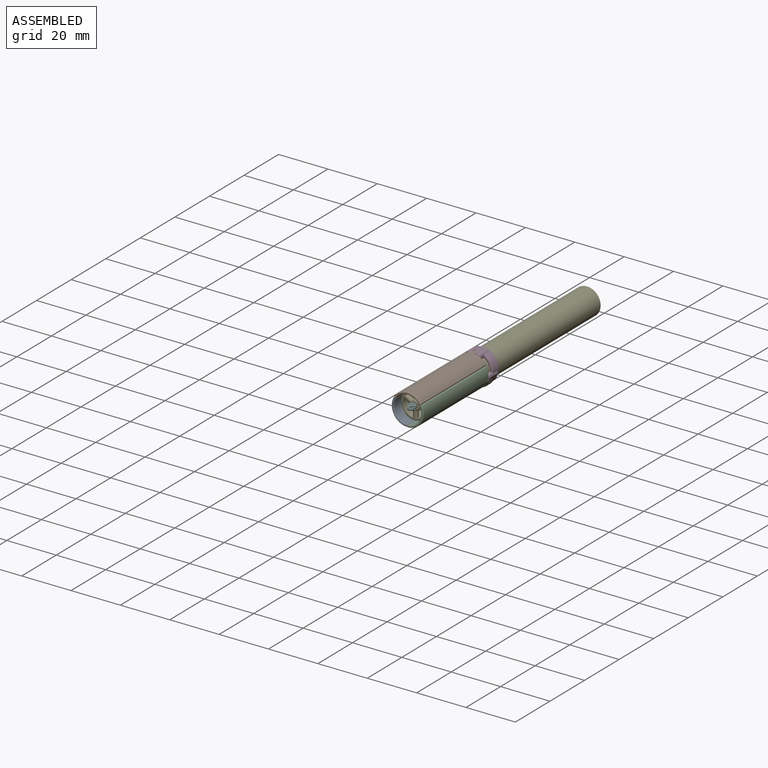
[diagram: assembled view]
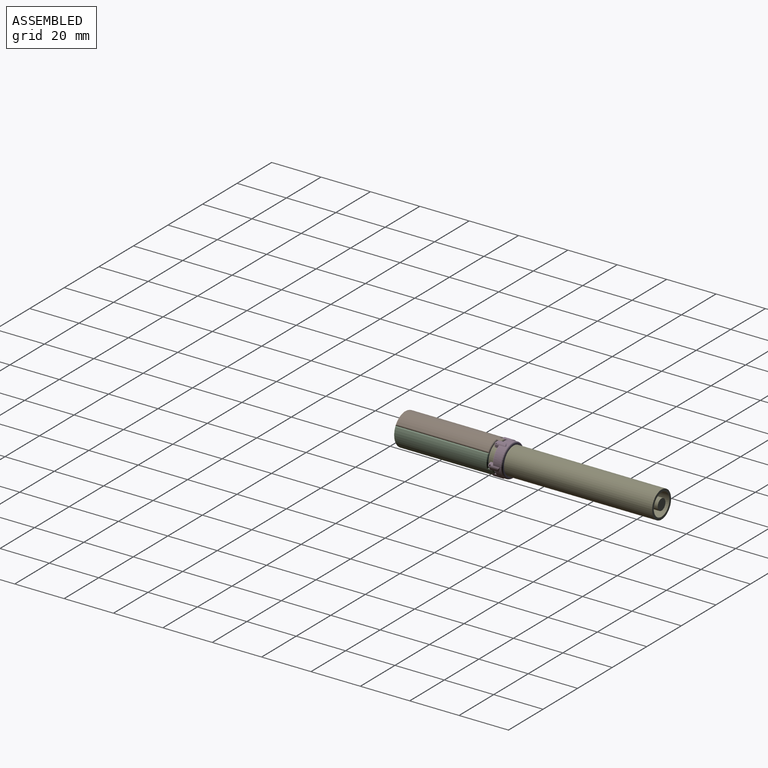
[diagram: assembled view, second angle]
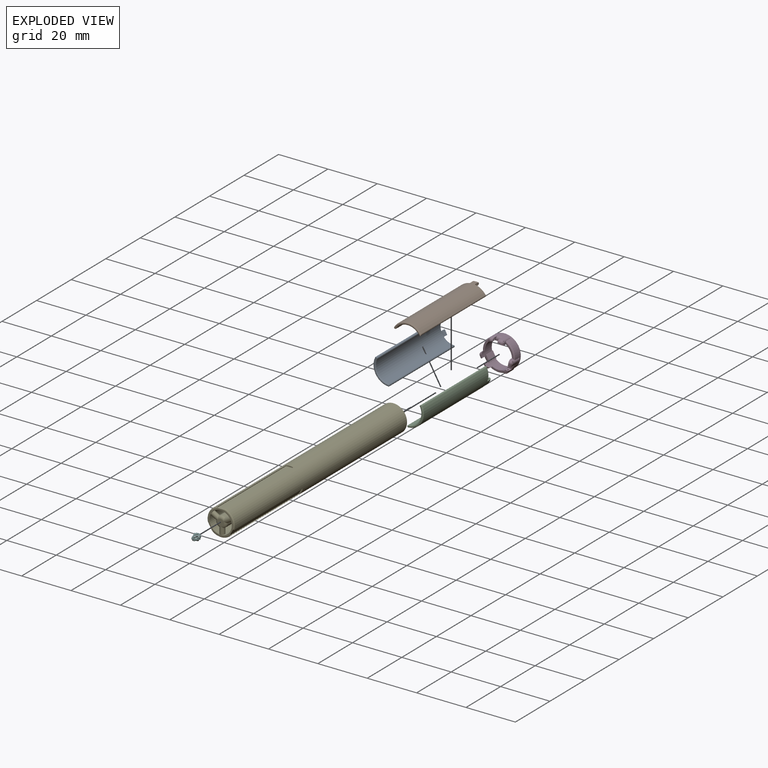
[diagram: exploded view]
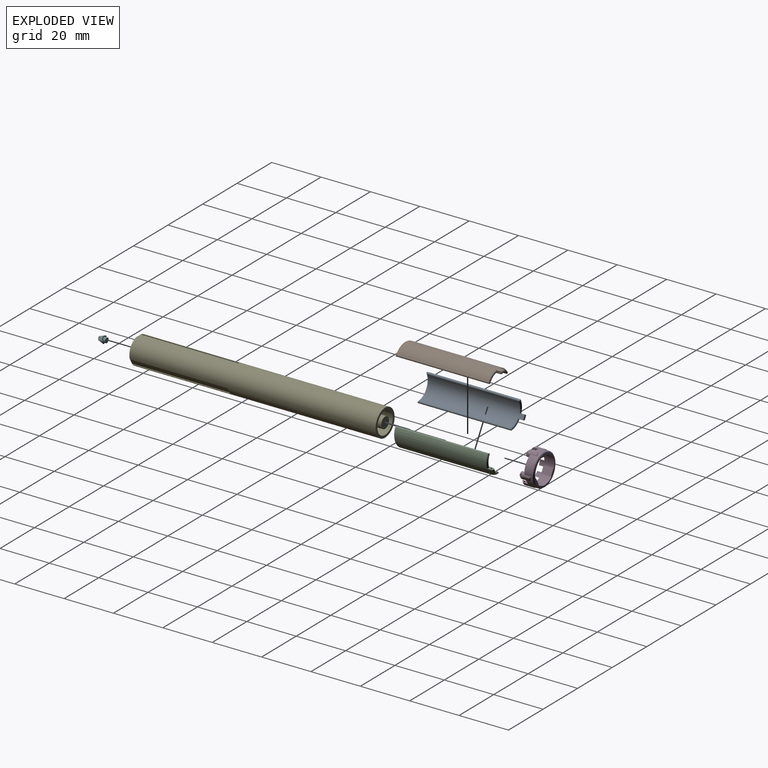
[diagram: exploded view, second angle]
ASSEMBLY  parts=6 mates=5
PART A: 15 faces, bbox 12.2x40x4.3 mm
  f0: cylinder r=6.5mm len=39mm, axis (0,1,0), area 467.6mm2, adj f3,f4,f8,f10,f11,f12,f13,f14
  f1: cylinder r=5.5mm len=37.5mm, axis (0,1,0), area 393.3mm2, adj f2,f3,f4,f10,f11,f12,f13,f14
  f2: plane 2x0.09mm, normal (0,-1,0), area 0.1mm2, adj f1,f5
  f3: plane 2.5x1.01mm, normal (-1,0,0), area 1.8mm2, adj f0,f1,f5,f6,f7,f8,f9,f14
  f4: plane 2.5x1.01mm, normal (1,0,0), area 1.8mm2, adj f0,f1,f5,f6,f7,f8,f9,f10
  f5: plane 2x1.5mm, normal (0,0,-1), area 3mm2, adj f2,f3,f4,f9
  f6: plane 2x0.09mm, normal (0,1,0), area 0.1mm2, adj f3,f4,f8,f9
  f7: cylinder r=0.25mm len=2mm, axis (1,0,0), area 3.1mm2, adj f3,f4
  f8: torus R=6mm, axis (0,1,0), area 1.6mm2, adj f0,f3,f4,f6
  f9: cylinder r=0.5mm len=2mm, axis (1,0,0), area 1.6mm2, adj f3,f4,f5,f6
  f10: torus R=6mm, axis (0,-1,0), area 8mm2, adj f0,f1,f4,f11
  f11: cylinder r=0.5mm len=38mm, axis (0,1,0), area 59.1mm2, adj f0,f1,f10,f12
  f12: torus R=6mm, axis (0,-1,0), area 19.2mm2, adj f0,f1,f11,f13
  f13: cylinder r=0.5mm len=38mm, axis (0,1,0), area 59.1mm2, adj f0,f1,f12,f14
  f14: torus R=6mm, axis (0,-1,0), area 8mm2, adj f0,f1,f3,f13
PART B: same geometry as A
PART C: same geometry as A
PART D: 87 faces, bbox 14.1x6x14.1 mm
  f0: cylinder r=5.5mm len=7.25mm, axis (0,1,0), area 42.8mm2, adj f5,f7,f8,f10,f15,f16,f18,f27
  f1: cylinder r=5.5mm len=8.37mm, axis (0,1,0), area 42.8mm2, adj f4,f7,f9,f10,f19,f20,f22,f31
  f2: cylinder r=5.5mm len=7.25mm, axis (0,1,0), area 42.8mm2, adj f6,f8,f9,f10,f12,f13,f14,f23
  f3: cylinder r=6.5mm len=13mm, axis (0,1,0), area 93.9mm2, adj f11,f17,f21,f24,f29,f32,f41,f42
  f4: plane 6x1.1mm, normal (0,-1,0), area 2.9mm2, adj f1,f19,f31,f66
  f5: plane 5.2x3mm, normal (0,-1,0), area 2.9mm2, adj f0,f16,f27,f65
  f6: plane 5.2x3mm, normal (0,-1,0), area 2.9mm2, adj f2,f12,f23,f67
  f7: plane 2.68x1.73mm, normal (0,-1,0), area 1.3mm2, adj f0,f1,f59,f60,f61,f62
  f8: plane 3x0.5mm, normal (0,-1,0), area 1.3mm2, adj f0,f2,f53,f54,f55,f64
  f9: plane 2.68x1.73mm, normal (0,-1,0), area 1.3mm2, adj f1,f2,f56,f57,f58,f63
  f10: plane 12x12mm, normal (0,1,0), area 21.9mm2, adj f0,f1,f2,f53,f54,f55,f56,f57
  f11: plane 3x1mm, normal (0,0,1), area 3mm2, adj f3,f13,f49,f50,f72
  f12: plane 1.04x0.82mm, normal (-1,0,0), area 0.8mm2, adj f2,f6,f49,f67,f74
  f13: plane 3x1.01mm, normal (1,0,0), area 1.8mm2, adj f2,f11,f14,f36,f64,f72
  f14: plane 1x0.3mm, normal (0,-1,0), area 0.1mm2, adj f2,f13,f72,f74
  f15: plane 3x1.01mm, normal (-1,0,0), area 1.8mm2, adj f0,f17,f18,f35,f64,f69
  f16: plane 1.04x0.82mm, normal (1,0,0), area 0.8mm2, adj f0,f5,f51,f65,f71
  f17: plane 3x1mm, normal (0,0,1), area 3mm2, adj f3,f15,f51,f52,f69
  f18: plane 1x0.3mm, normal (0,-1,0), area 0.1mm2, adj f0,f15,f69,f71
  f19: plane 1.04x0.71mm, normal (0.5,0,-0.87), area 0.8mm2, adj f1,f4,f41,f66,f81
  f20: plane 3x0.88mm, normal (-0.5,0,0.87), area 1.8mm2, adj f1,f21,f22,f38,f63,f83
  f21: plane 3x0.87mm, normal (-0.87,0,-0.5), area 3mm2, adj f3,f20,f41,f42,f83
  f22: plane 0.87x0.76mm, normal (0,-1,0), area 0.1mm2, adj f1,f20,f81,f83
  f23: plane 1.04x0.71mm, normal (-0.5,0,0.87), area 0.8mm2, adj f2,f6,f43,f67,f86
  f24: plane 3x0.87mm, normal (-0.87,0,-0.5), area 3mm2, adj f3,f25,f43,f44,f84
  f25: plane 3x0.88mm, normal (0.5,0,-0.87), area 1.8mm2, adj f2,f24,f26,f37,f63,f84
  f26: plane 1.02x0.51mm, normal (0,-1,0), area 0.1mm2, adj f2,f25,f84,f86
  f27: plane 1.04x0.71mm, normal (0.5,0,0.87), area 0.8mm2, adj f0,f5,f47,f65,f75
  f28: plane 3x0.88mm, normal (-0.5,0,-0.87), area 1.8mm2, adj f0,f29,f30,f40,f62,f77
  f29: plane 3x0.87mm, normal (0.87,0,-0.5), area 3mm2, adj f3,f28,f47,f48,f77
  f30: plane 1.02x0.51mm, normal (0,-1,0), area 0.1mm2, adj f0,f28,f75,f77
  f31: plane 1.04x0.71mm, normal (-0.5,0,-0.87), area 0.8mm2, adj f1,f4,f45,f66,f80
  f32: plane 3x0.87mm, normal (0.87,0,-0.5), area 3mm2, adj f3,f33,f45,f46,f78
  f33: plane 3x0.88mm, normal (0.5,0,0.87), area 1.8mm2, adj f1,f32,f34,f39,f62,f78
  f34: plane 0.87x0.76mm, normal (0,-1,0), area 0.1mm2, adj f1,f33,f78,f80
  f35: cylinder r=0.25mm len=1.97mm, axis (1,0,0), area 2.9mm2, adj f15,f51,f70
  f36: cylinder r=0.25mm len=1.97mm, axis (1,0,0), area 2.9mm2, adj f13,f49,f73
  f37: cylinder r=0.25mm len=1.95mm, axis (-0.5,0,0.87), area 2.9mm2, adj f25,f43,f85
  f38: cylinder r=0.25mm len=1.95mm, axis (-0.5,0,0.87), area 2.9mm2, adj f20,f41,f82
  f39: cylinder r=0.25mm len=1.95mm, axis (-0.5,0,-0.87), area 2.9mm2, adj f33,f45,f79
  f40: cylinder r=0.25mm len=1.95mm, axis (-0.5,0,-0.87), area 2.9mm2, adj f28,f47,f76
  f41: cylinder r=1mm len=3.92mm, axis (0,1,0), area 4.5mm2, adj f3,f19,f21,f38,f42,f66,f82
  f42: cylinder r=1mm len=1.98mm, axis (0.5,0,-0.87), area 0.8mm2, adj f3,f21,f41
  f43: cylinder r=1mm len=3.92mm, axis (0,1,0), area 4.5mm2, adj f3,f23,f24,f37,f44,f67,f85
  f44: cylinder r=1mm len=1.98mm, axis (0.5,0,-0.87), area 0.8mm2, adj f3,f24,f43
  f45: cylinder r=1mm len=3.92mm, axis (0,1,0), area 4.5mm2, adj f3,f31,f32,f39,f46,f66,f79
  f46: cylinder r=1mm len=1.98mm, axis (0.5,0,0.87), area 0.8mm2, adj f3,f32,f45
  f47: cylinder r=1mm len=3.92mm, axis (0,1,0), area 4.5mm2, adj f3,f27,f29,f40,f48,f65,f76
  f48: cylinder r=1mm len=1.98mm, axis (0.5,0,0.87), area 0.8mm2, adj f3,f29,f47
  f49: cylinder r=1mm len=3.92mm, axis (0,1,0), area 4.5mm2, adj f3,f11,f12,f36,f50,f67,f73
  f50: cylinder r=1mm len=1.92mm, axis (-1,0,0), area 0.8mm2, adj f3,f11,f49
  f51: cylinder r=1mm len=3.92mm, axis (0,1,0), area 4.5mm2, adj f3,f16,f17,f35,f52,f65,f70
  f52: cylinder r=1mm len=1.92mm, axis (-1,0,0), area 0.8mm2, adj f3,f17,f51
  f53: plane 4x0.32mm, normal (-0.97,0,0.26), area 1.3mm2, adj f2,f8,f10,f54
  f54: plane 4x3mm, normal (0,0,-1), area 12mm2, adj f8,f10,f53,f55
  f55: plane 4x0.32mm, normal (0.97,0,0.26), area 1.3mm2, adj f0,f8,f10,f54
  f56: plane 4x0.32mm, normal (0.26,0,-0.97), area 1.3mm2, adj f1,f9,f10,f57
  f57: plane 4x2.6mm, normal (0.87,0,0.5), area 12mm2, adj f9,f10,f56,f58
  f58: plane 4x0.23mm, normal (-0.71,0,0.71), area 1.3mm2, adj f2,f9,f10,f57
  f59: plane 4x0.23mm, normal (0.71,0,0.71), area 1.3mm2, adj f0,f7,f10,f60
  f60: plane 4x2.6mm, normal (-0.87,0,0.5), area 12mm2, adj f7,f10,f59,f61
  f61: plane 4x0.32mm, normal (-0.26,0,-0.97), area 1.3mm2, adj f1,f7,f10,f60
  f62: torus R=5.5mm, axis (0,-1,0), area 3.2mm2, adj f3,f7,f28,f33
  f63: torus R=5.5mm, axis (0,-1,0), area 3.2mm2, adj f3,f9,f20,f25
  f64: torus R=5.5mm, axis (0,-1,0), area 3.2mm2, adj f3,f8,f13,f15
  f65: torus R=6mm, axis (0,-1,0), area 5.5mm2, adj f3,f5,f16,f27,f47,f51
  f66: torus R=6mm, axis (0,-1,0), area 5.5mm2, adj f3,f4,f19,f31,f41,f45
  f67: torus R=6mm, axis (0,-1,0), area 5.5mm2, adj f3,f6,f12,f23,f43,f49
  f68: torus R=6mm, axis (0,-1,0), area 31.2mm2, adj f3,f10
  f69: cylinder r=1mm len=1mm, axis (1,0,0), area 1.6mm2, adj f15,f17,f18,f70
  f70: sphere r=1mm, area 1.5mm2, adj f35,f51,f69,f71
  f71: cylinder r=1mm len=1mm, axis (0,0,-1), area 1mm2, adj f0,f16,f18,f70
  f72: cylinder r=1mm len=1mm, axis (1,0,0), area 1.6mm2, adj f11,f13,f14,f73
  f73: sphere r=1mm, area 1.5mm2, adj f36,f49,f72,f74
  f74: cylinder r=1mm len=1mm, axis (0,0,1), area 1mm2, adj f2,f12,f14,f73
  f75: cylinder r=1mm len=1.27mm, axis (0.87,0,-0.5), area 1mm2, adj f0,f27,f30,f76
  f76: sphere r=1mm, area 1.5mm2, adj f40,f47,f75,f77
  f77: cylinder r=1mm len=1.37mm, axis (-0.5,0,-0.87), area 1.6mm2, adj f28,f29,f30,f76
  f78: cylinder r=1mm len=1.37mm, axis (-0.5,0,-0.87), area 1.6mm2, adj f32,f33,f34,f79
  f79: sphere r=1mm, area 1.5mm2, adj f39,f45,f78,f80
  f80: cylinder r=1mm len=1.27mm, axis (-0.87,0,0.5), area 1mm2, adj f1,f31,f34,f79
  f81: cylinder r=1mm len=1.27mm, axis (-0.87,0,-0.5), area 1mm2, adj f1,f19,f22,f82
  f82: sphere r=1mm, area 1.5mm2, adj f38,f41,f81,f83
  f83: cylinder r=1mm len=1.37mm, axis (-0.5,0,0.87), area 1.6mm2, adj f20,f21,f22,f82
  f84: cylinder r=1mm len=1.37mm, axis (-0.5,0,0.87), area 1.6mm2, adj f24,f25,f26,f85
  f85: sphere r=1mm, area 1.5mm2, adj f37,f43,f84,f86
  f86: cylinder r=1mm len=1.27mm, axis (0.87,0,0.5), area 1mm2, adj f2,f23,f26,f85
PART E: 28 faces, bbox 12x100.1x12 mm
  f0: plane 10x10mm, normal (0,-1,0), area 14.9mm2, adj f1,f25,f26,f27
  f1: cylinder r=4.5mm len=100mm, axis (0,-1,0), area 2817.9mm2, adj f0,f4,f19,f20,f23
  f2: plane 2.5x2.5mm, normal (0,-1,0), area 4.9mm2, adj f21,f22,f24
  f3: cylinder r=5.5mm len=99.5mm, axis (0,1,0), area 3099.1mm2, adj f4,f5,f7,f8,f9,f11,f12,f13
  f4: plane 11x11mm, normal (0,1,0), area 31.4mm2, adj f1,f3
  f5: plane 40.03x0.31mm, normal (-0.71,0,-0.71), area 13mm2, adj f3,f6,f8,f27
  f6: plane 40x2.6mm, normal (0.87,0,-0.5), area 120mm2, adj f5,f7,f8,f25,f27
  f7: plane 40.03x0.39mm, normal (0.26,0,0.97), area 13mm2, adj f3,f6,f8,f25
  f8: plane 2.68x1.73mm, normal (0,-1,0), area 1.3mm2, adj f3,f5,f6,f7
  f9: plane 40.03x0.39mm, normal (-0.26,0,0.97), area 13mm2, adj f3,f10,f12,f25
  f10: plane 40x2.6mm, normal (-0.87,0,-0.5), area 120mm2, adj f9,f11,f12,f25,f26
  f11: plane 40.03x0.31mm, normal (0.71,0,-0.71), area 13mm2, adj f3,f10,f12,f26
  f12: plane 2.68x1.73mm, normal (0,-1,0), area 1.3mm2, adj f3,f9,f10,f11
  f13: plane 40.03x0.39mm, normal (0.97,0,-0.26), area 13mm2, adj f3,f14,f16,f26
  f14: plane 40x3mm, normal (0,0,1), area 120mm2, adj f13,f15,f16,f26,f27
  f15: plane 40.03x0.39mm, normal (-0.97,0,-0.26), area 13mm2, adj f3,f14,f16,f27
  f16: plane 3x0.5mm, normal (0,-1,0), area 1.3mm2, adj f3,f13,f14,f15
  f17: plane 4.5x4.5mm, normal (0,1,0), area 15.9mm2, adj f18
  f18: cylinder r=2.25mm len=99mm, axis (0,-1,0), area 1394.7mm2, adj f17,f19,f20,f21,f22,f23,f24
  f19: cylinder r=1mm len=3.81mm, axis (-0.87,0,0.5), area 15.7mm2, adj f1,f18,f21,f22
  f20: cylinder r=1mm len=3.25mm, axis (0,0,1), area 15.7mm2, adj f1,f18,f21,f24
  f21: torus R=1.25mm, axis (0,-1,0), area 4.2mm2, adj f2,f18,f19,f20
  f22: torus R=1.25mm, axis (0,-1,0), area 4.2mm2, adj f2,f18,f19,f23
  f23: cylinder r=1mm len=3.81mm, axis (0.87,0,0.5), area 15.7mm2, adj f1,f18,f22,f24
  f24: torus R=1.25mm, axis (0,-1,0), area 4.2mm2, adj f2,f18,f20,f23
  f25: torus R=5mm, axis (0,-1,0), area 6.6mm2, adj f0,f3,f6,f7,f9,f10
  f26: torus R=5mm, axis (0,-1,0), area 6.6mm2, adj f0,f3,f10,f11,f13,f14
  f27: torus R=5mm, axis (0,-1,0), area 6.6mm2, adj f0,f3,f5,f6,f14,f15
PART F: 46 faces, bbox 3.1x3.7x3.1 mm
  f0: cone r=1.5mm half-angle=17.7deg, axis (0,1,0), area 1mm2, adj f13,f14,f20,f45
  f1: bspline ~2.5x1.43mm, area 1mm2, adj f2,f11,f19,f45
  f2: bspline ~2.5x1.25mm, area 1.1mm2, adj f1,f13,f20,f45
  f3: cone r=1.5mm half-angle=17.7deg, axis (0,1,0), area 1mm2, adj f15,f16,f22,f45
  f4: bspline ~2.4x1.3mm, area 1mm2, adj f5,f14,f20,f45
  f5: bspline ~2.4x1.2mm, area 1.1mm2, adj f4,f15,f22,f45
  f6: bspline ~2.5x1.51mm, area 1mm2, adj f16,f22,f23,f45
  f7: cone r=1.5mm half-angle=17.7deg, axis (0,1,0), area 0.9mm2, adj f17,f18,f37,f45
  f8: cone r=1.5mm half-angle=17.7deg, axis (0,1,0), area 1mm2, adj f11,f12,f19,f45
  f9: bspline ~2.4x1.31mm, area 1.1mm2, adj f10,f12,f19,f45
  f10: bspline ~2.5x1.45mm, area 1mm2, adj f9,f18,f37,f45
  f11: bspline ~2.83x1.61mm, area 0.4mm2, adj f1,f8,f19,f45
  f12: bspline ~2.25x1.02mm, area 0.4mm2, adj f8,f9,f19,f45
  f13: bspline ~2.25x1.32mm, area 0.4mm2, adj f0,f2,f20,f45
  f14: bspline ~2.83x1.54mm, area 0.4mm2, adj f0,f4,f20,f45
  f15: bspline ~2.25x1.05mm, area 0.4mm2, adj f3,f5,f22,f45
  f16: bspline ~2.83x1.72mm, area 0.4mm2, adj f3,f6,f22,f45
  f17: bspline ~2.25x1.29mm, area 0.4mm2, adj f7,f34,f37,f45
  f18: bspline ~2.83x1.69mm, area 0.4mm2, adj f7,f10,f37,f45
  f19: plane 1.12x0.74mm, normal (0,1,0), area 0.5mm2, adj f1,f8,f9,f11,f12,f35
  f20: plane 0.91x0.82mm, normal (0,1,0), area 0.5mm2, adj f0,f2,f4,f13,f14,f35
  f21: cone r=1.5mm half-angle=17.7deg, axis (0,1,0), area 1mm2, adj f25,f39,f40,f45
  f22: plane 1.11x0.81mm, normal (0,1,0), area 0.5mm2, adj f3,f5,f6,f15,f16,f35
  f23: bspline ~2.5x1.32mm, area 1.1mm2, adj f6,f25,f39,f45
  f24: cone r=1.5mm half-angle=17.7deg, axis (0,1,0), area 1mm2, adj f29,f41,f42,f45
  f25: plane 1.01x0.67mm, normal (0,1,0), area 0.5mm2, adj f21,f23,f26,f35,f39,f40
  f26: bspline ~2.5x1.28mm, area 1mm2, adj f25,f27,f40,f45
  f27: bspline ~2.5x1.09mm, area 1.1mm2, adj f26,f29,f41,f45
  f28: cone r=1.5mm half-angle=17.7deg, axis (0,1,0), area 1mm2, adj f32,f43,f44,f45
  f29: plane 1.07x0.84mm, normal (0,1,0), area 0.5mm2, adj f24,f27,f30,f35,f41,f42
  f30: bspline ~2.4x1.4mm, area 1mm2, adj f29,f31,f42,f45
  f31: bspline ~2.5x1.35mm, area 1.1mm2, adj f30,f32,f43,f45
  f32: plane 1.09x0.64mm, normal (0,1,0), area 0.5mm2, adj f28,f31,f33,f35,f43,f44
  f33: bspline ~2.4x1.18mm, area 1mm2, adj f32,f34,f44,f45
  f34: bspline ~2.5x1.2mm, area 1.1mm2, adj f17,f33,f37,f45
  f35: cylinder r=1mm len=2mm, axis (0,1,0), area 6.3mm2, adj f19,f20,f22,f25,f29,f32,f36,f37
  f36: plane 2x2mm, normal (0,1,0), area 3.1mm2, adj f35
  f37: plane 0.97x0.87mm, normal (0,1,0), area 0.5mm2, adj f7,f10,f17,f18,f34,f35
  f38: plane 0.05x0.05mm, normal (0,-1,0), area 0mm2, adj f45
  f39: bspline ~2.25x1.28mm, area 0.4mm2, adj f21,f23,f25,f45
  f40: bspline ~2.83x1.32mm, area 0.4mm2, adj f21,f25,f26,f45
  f41: bspline ~2.25x1.2mm, area 0.4mm2, adj f24,f27,f29,f45
  f42: bspline ~2.83x1.75mm, area 0.4mm2, adj f24,f29,f30,f45
  f43: bspline ~2.25x1.18mm, area 0.4mm2, adj f28,f31,f32,f45
  f44: bspline ~2.83x1.46mm, area 0.4mm2, adj f28,f32,f33,f45
  f45: cone r=0mm half-angle=60deg, axis (0,1,0), area 1.6mm2, adj f0,f1,f2,f3,f4,f5,f6,f7
PLACE A rot(axis=(0,-1,0),120deg) t=(0,-16.02,0)mm
PLACE B rot(axis=(1,0,0),0deg) t=(0,-16.02,0)mm
PLACE C rot(axis=(0,1,0),120deg) t=(0,-16.03,0)mm
PLACE D t=(0,-12,0)mm
PLACE E at identity fixed
PLACE F rot(axis=(0,1,0),149.6deg) t=(0,-50,0)mm
MATE revolute E.f18 <-> F.f35  axis (0,-1,0) through (0,-50,0)mm
MATE revolute C.f7 <-> D.f39  axis (0.5,0,0.87) through (5.63,-15,-2.1)mm
MATE revolute B.f7 <-> D.f35  axis (-1,0,0) through (-1,-15,5.92)mm
MATE revolute A.f7 <-> D.f37  axis (0.5,0,-0.87) through (-4.63,-15,-3.83)mm
MATE slider D.f10 <-> E.f16  axis (0,-1,0) through (1.5,-10,5)mm
